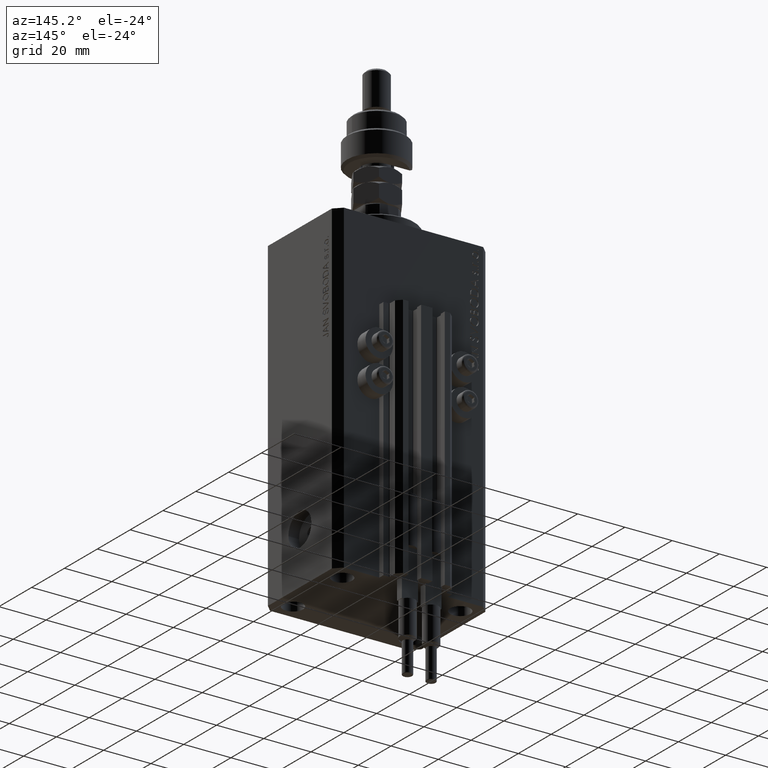
[diagram: clean part render]
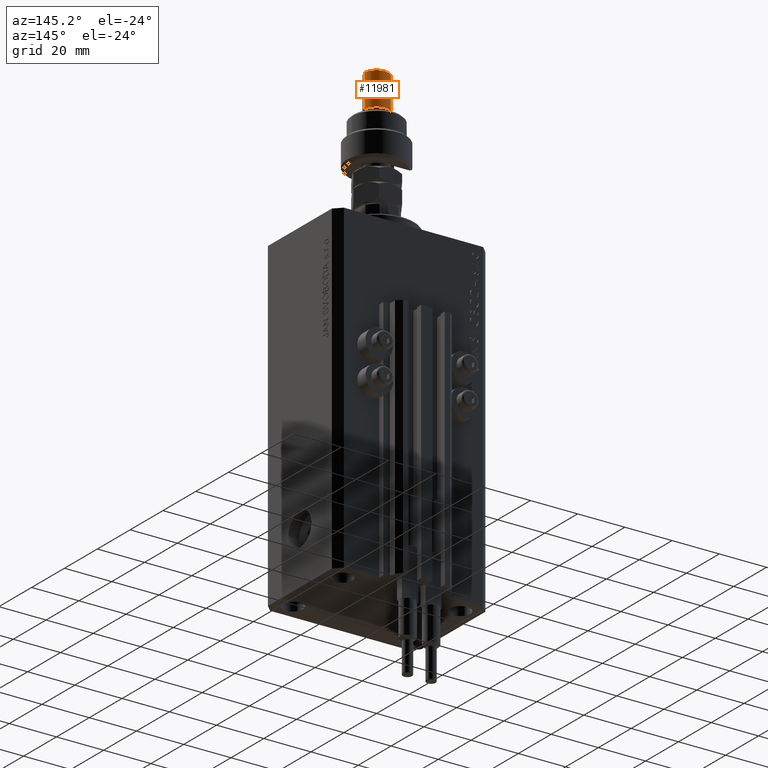
[diagram: same view with one face highlighted and labeled with its STEP entity id]
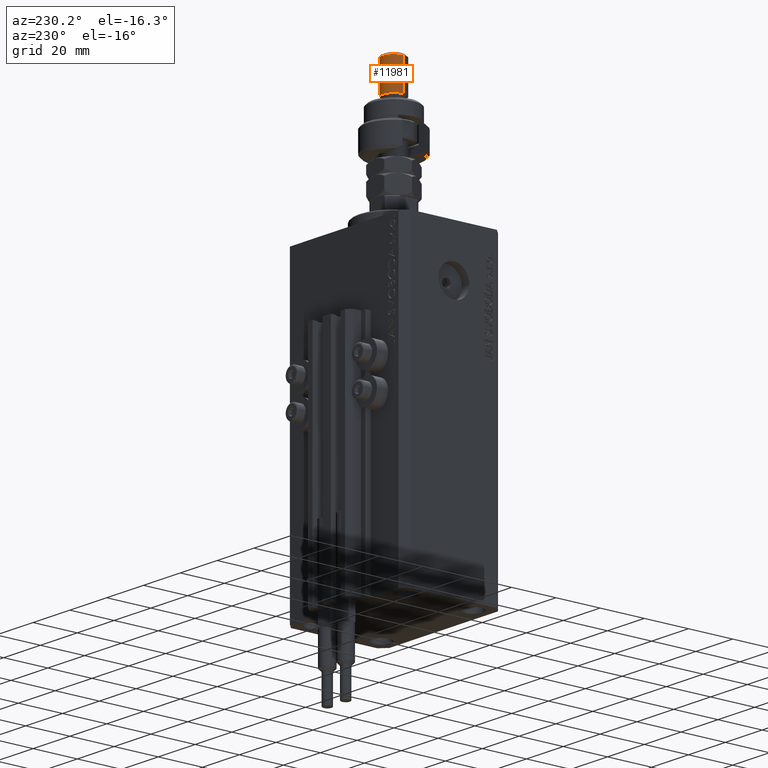
[diagram: same view with one face highlighted and labeled with its STEP entity id]
A machine part, auxiliary view. The second image highlights one B-rep face of the part: STEP entity #11981.
A second angle (auxiliary view) of the same face is appended — the face is thin or edge-on in the first view.
In plain terms, the highlighted cylindrical surface (edge-blend (fillet) strip) has radius 5 mm, axis along (-0, -0, -1).
Its self-contained STEP definition (entity closure, byte-faithful):
#750 = CIRCLE ( 'NONE', #12221, 5.000000000000000888 ) ;
#763 = DIRECTION ( 'NONE',  ( 1.000000000000000000, 0.000000000000000000, 0.000000000000000000 ) ) ;
#1586 = VERTEX_POINT ( 'NONE', #43070 ) ;
#1843 = EDGE_CURVE ( 'NONE', #17922, #50674, #750, .T. ) ;
#2180 = CARTESIAN_POINT ( 'NONE',  ( 0.000000000000000000, 0.000000000000000000, 36.00000000000000711 ) ) ;
#2953 = DIRECTION ( 'NONE',  ( -1.000000000000000000, 0.000000000000000000, 0.000000000000000000 ) ) ;
#3357 = CIRCLE ( 'NONE', #16468, 5.000000000000000888 ) ;
#3827 = ORIENTED_EDGE ( 'NONE', *, *, #1843, .T. ) ;
#4159 = ORIENTED_EDGE ( 'NONE', *, *, #21207, .T. ) ;
#5488 = EDGE_CURVE ( 'NONE', #1586, #46105, #3357, .T. ) ;
#6756 = AXIS2_PLACEMENT_3D ( 'NONE', #26596, #22998, #2953 ) ;
#7313 = FACE_OUTER_BOUND ( 'NONE', #41308, .T. ) ;
#7718 = DIRECTION ( 'NONE',  ( -0.000000000000000000, -0.000000000000000000, 1.000000000000000000 ) ) ;
#9384 = DIRECTION ( 'NONE',  ( 0.000000000000000000, 0.000000000000000000, -1.000000000000000000 ) ) ;
#9782 = ORIENTED_EDGE ( 'NONE', *, *, #39663, .F. ) ;
#11981 = ADVANCED_FACE ( 'NONE', ( #7313 ), #50257, .T. ) ;
#12221 = AXIS2_PLACEMENT_3D ( 'NONE', #27249, #7718, #763 ) ;
#12234 = DIRECTION ( 'NONE',  ( -0.000000000000000000, -0.000000000000000000, -1.000000000000000000 ) ) ;
#13532 = CARTESIAN_POINT ( 'NONE',  ( 5.000000000000000888, 6.123233995736767268E-16, 36.00000000000000711 ) ) ;
#14982 = VECTOR ( 'NONE', #49679, 1000.000000000000000 ) ;
#16329 = CARTESIAN_POINT ( 'NONE',  ( 5.000000000000000888, 6.123233995736767268E-16, 37.00000000000000000 ) ) ;
#16468 = AXIS2_PLACEMENT_3D ( 'NONE', #2180, #9384, #44108 ) ;
#17922 = VERTEX_POINT ( 'NONE', #19598 ) ;
#19598 = CARTESIAN_POINT ( 'NONE',  ( 5.000000000000000888, 6.123233995736767268E-16, 21.99999999999999289 ) ) ;
#21207 = EDGE_CURVE ( 'NONE', #46105, #17922, #24067, .T. ) ;
#22163 = LINE ( 'NONE', #37851, #14982 ) ;
#22998 = DIRECTION ( 'NONE',  ( -0.000000000000000000, -0.000000000000000000, -1.000000000000000000 ) ) ;
#23408 = VECTOR ( 'NONE', #12234, 1000.000000000000000 ) ;
#24067 = LINE ( 'NONE', #16329, #23408 ) ;
#25481 = ORIENTED_EDGE ( 'NONE', *, *, #5488, .T. ) ;
#26596 = CARTESIAN_POINT ( 'NONE',  ( 0.000000000000000000, 0.000000000000000000, 37.00000000000000000 ) ) ;
#26944 = CARTESIAN_POINT ( 'NONE',  ( -5.000000000000000888, 0.000000000000000000, 21.99999999999999289 ) ) ;
#27249 = CARTESIAN_POINT ( 'NONE',  ( 0.000000000000000000, 0.000000000000000000, 21.99999999999999289 ) ) ;
#37851 = CARTESIAN_POINT ( 'NONE',  ( -5.000000000000000888, 0.000000000000000000, 37.00000000000000000 ) ) ;
#39663 = EDGE_CURVE ( 'NONE', #1586, #50674, #22163, .T. ) ;
#41308 = EDGE_LOOP ( 'NONE', ( #25481, #4159, #3827, #9782 ) ) ;
#43070 = CARTESIAN_POINT ( 'NONE',  ( -5.000000000000000888, 0.000000000000000000, 36.00000000000000711 ) ) ;
#44108 = DIRECTION ( 'NONE',  ( 1.000000000000000000, 0.000000000000000000, 0.000000000000000000 ) ) ;
#46105 = VERTEX_POINT ( 'NONE', #13532 ) ;
#49679 = DIRECTION ( 'NONE',  ( -0.000000000000000000, -0.000000000000000000, -1.000000000000000000 ) ) ;
#50257 = CYLINDRICAL_SURFACE ( 'NONE', #6756, 5.000000000000000888 ) ;
#50674 = VERTEX_POINT ( 'NONE', #26944 ) ;